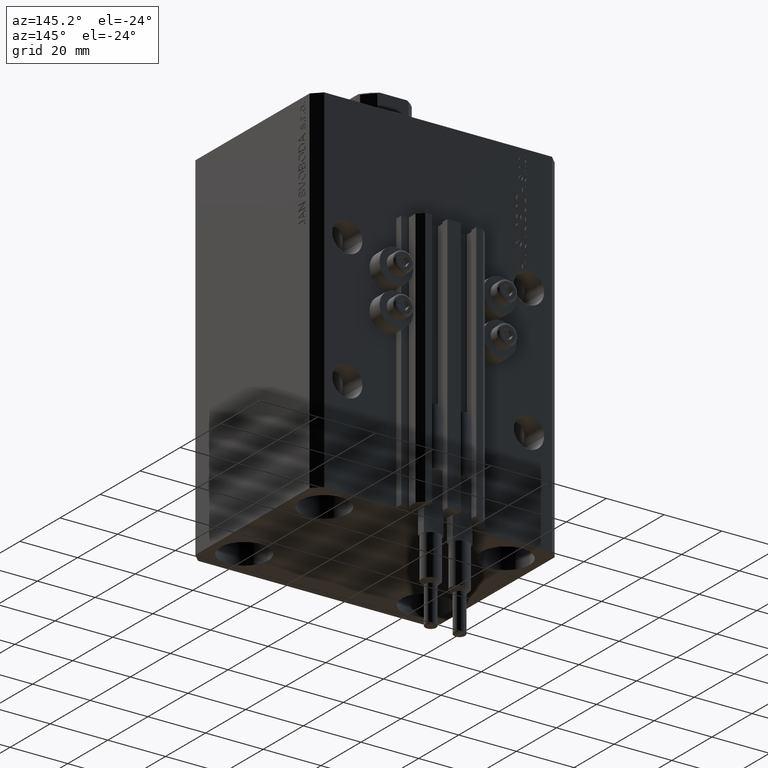
[diagram: clean part render]
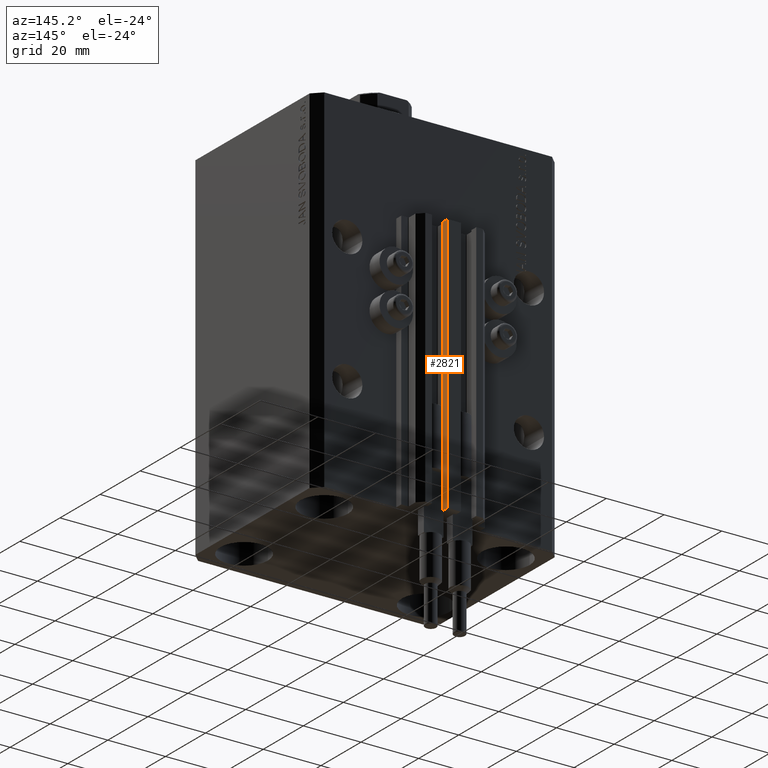
[diagram: same view with one face highlighted and labeled with its STEP entity id]
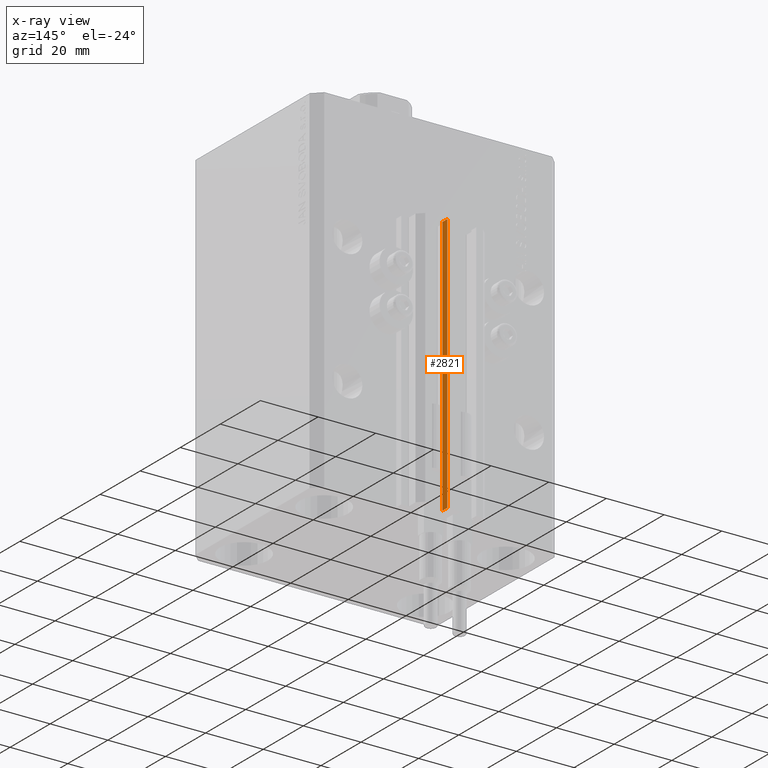
[diagram: x-ray of the same camera — body ghosted, the highlighted face saturated]
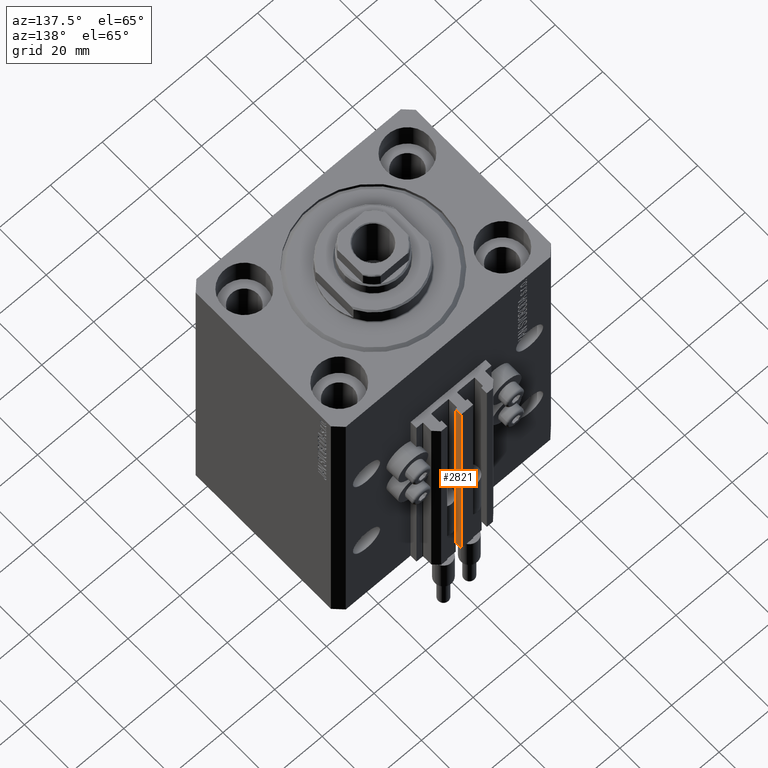
[diagram: same view with one face highlighted and labeled with its STEP entity id]
A machine part, auxiliary view. The second image highlights one B-rep face of the part: STEP entity #2821.
The next image is the same camera in x-ray: the body ghosted, the highlighted face saturated — about 0% of this face is hidden behind the body in this view.
A second angle (auxiliary view) of the same face is appended — the face is thin or edge-on in the first view.
In plain terms, the highlighted planar face has unit normal (1, 0, 0).
Its self-contained STEP definition (entity closure, byte-faithful):
#37 = FACE_OUTER_BOUND ( 'NONE', #34082, .T. ) ;
#77 = LINE ( 'NONE', #7513, #41538 ) ;
#912 = VERTEX_POINT ( 'NONE', #41875 ) ;
#1820 = ORIENTED_EDGE ( 'NONE', *, *, #11576, .T. ) ;
#2152 = LINE ( 'NONE', #9105, #10398 ) ;
#2821 = ADVANCED_FACE ( 'NONE', ( #37 ), #25292, .T. ) ;
#3545 = CARTESIAN_POINT ( 'NONE',  ( 2.349999999999999645, 39.50000000000000711, -33.00000000000000000 ) ) ;
#4132 = CARTESIAN_POINT ( 'NONE',  ( 2.349999999999999645, 37.10000000000000853, -33.00000000000000000 ) ) ;
#6398 = VECTOR ( 'NONE', #38040, 1000.000000000000000 ) ;
#6444 = DIRECTION ( 'NONE',  ( 0.000000000000000000, 0.000000000000000000, 1.000000000000000000 ) ) ;
#7513 = CARTESIAN_POINT ( 'NONE',  ( 2.349999999999999645, 37.10000000000000853, -123.0000000000000000 ) ) ;
#9105 = CARTESIAN_POINT ( 'NONE',  ( 2.349999999999999645, 37.10000000000000853, -123.0000000000000000 ) ) ;
#10398 = VECTOR ( 'NONE', #46695, 1000.000000000000000 ) ;
#10404 = LINE ( 'NONE', #41974, #29187 ) ;
#11576 = EDGE_CURVE ( 'NONE', #31004, #17375, #10404, .T. ) ;
#16899 = EDGE_CURVE ( 'NONE', #912, #31004, #2152, .T. ) ;
#17375 = VERTEX_POINT ( 'NONE', #3545 ) ;
#17789 = CARTESIAN_POINT ( 'NONE',  ( 2.349999999999999645, 37.10000000000000853, -33.00000000000000000 ) ) ;
#17868 = CARTESIAN_POINT ( 'NONE',  ( 2.349999999999999645, 37.10000000000000853, -123.0000000000000000 ) ) ;
#24432 = EDGE_CURVE ( 'NONE', #26606, #17375, #40297, .T. ) ;
#25292 = PLANE ( 'NONE',  #46358 ) ;
#26021 = ORIENTED_EDGE ( 'NONE', *, *, #24432, .F. ) ;
#26606 = VERTEX_POINT ( 'NONE', #4132 ) ;
#29187 = VECTOR ( 'NONE', #6444, 1000.000000000000000 ) ;
#29248 = DIRECTION ( 'NONE',  ( 1.000000000000000000, 0.000000000000000000, 0.000000000000000000 ) ) ;
#31004 = VERTEX_POINT ( 'NONE', #45895 ) ;
#34082 = EDGE_LOOP ( 'NONE', ( #26021, #46696, #35446, #1820 ) ) ;
#34225 = DIRECTION ( 'NONE',  ( 0.000000000000000000, 0.000000000000000000, 1.000000000000000000 ) ) ;
#35446 = ORIENTED_EDGE ( 'NONE', *, *, #16899, .T. ) ;
#38040 = DIRECTION ( 'NONE',  ( 0.000000000000000000, 1.000000000000000000, 0.000000000000000000 ) ) ;
#39365 = EDGE_CURVE ( 'NONE', #912, #26606, #77, .T. ) ;
#40297 = LINE ( 'NONE', #17789, #6398 ) ;
#41538 = VECTOR ( 'NONE', #34225, 1000.000000000000000 ) ;
#41875 = CARTESIAN_POINT ( 'NONE',  ( 2.349999999999999645, 37.10000000000000853, -123.0000000000000000 ) ) ;
#41974 = CARTESIAN_POINT ( 'NONE',  ( 2.349999999999999645, 39.50000000000000711, -123.0000000000000000 ) ) ;
#44326 = DIRECTION ( 'NONE',  ( 0.000000000000000000, 0.000000000000000000, -1.000000000000000000 ) ) ;
#45895 = CARTESIAN_POINT ( 'NONE',  ( 2.349999999999999645, 39.50000000000000711, -123.0000000000000000 ) ) ;
#46358 = AXIS2_PLACEMENT_3D ( 'NONE', #17868, #29248, #44326 ) ;
#46695 = DIRECTION ( 'NONE',  ( 0.000000000000000000, 1.000000000000000000, 0.000000000000000000 ) ) ;
#46696 = ORIENTED_EDGE ( 'NONE', *, *, #39365, .F. ) ;